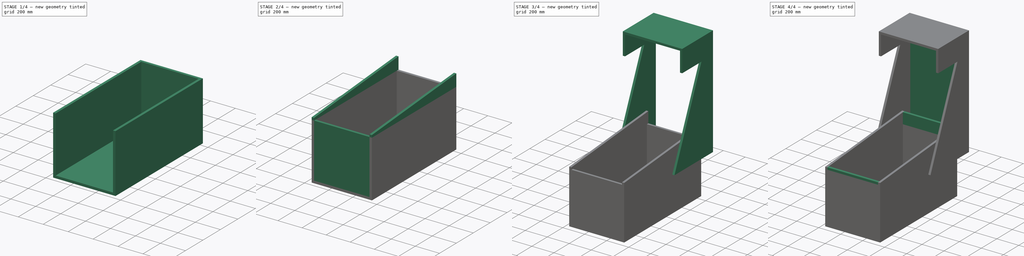
[diagram: build sequence overview — one tinted view per stage of 4, left to right]
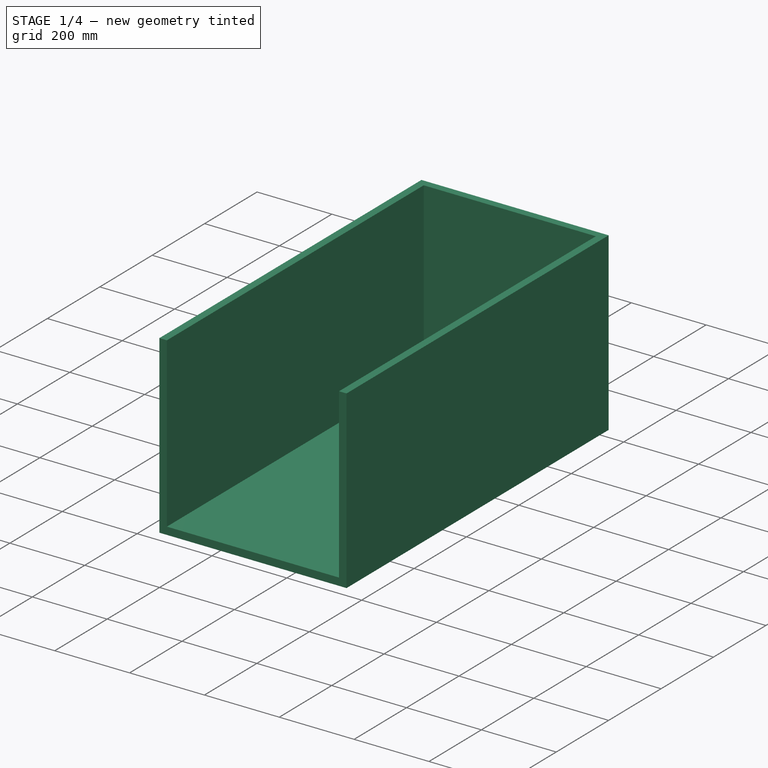
[diagram: stage 1 of 4 — iso view after this stage's code; geometry added in this stage tinted green]
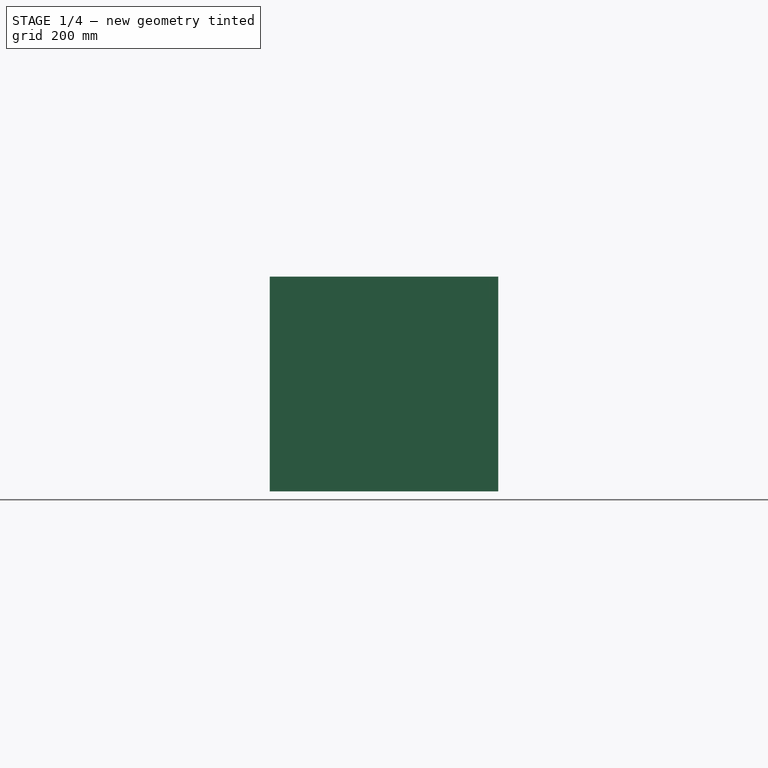
[diagram: stage 1 of 4 — front view after this stage's code; geometry added in this stage tinted green]
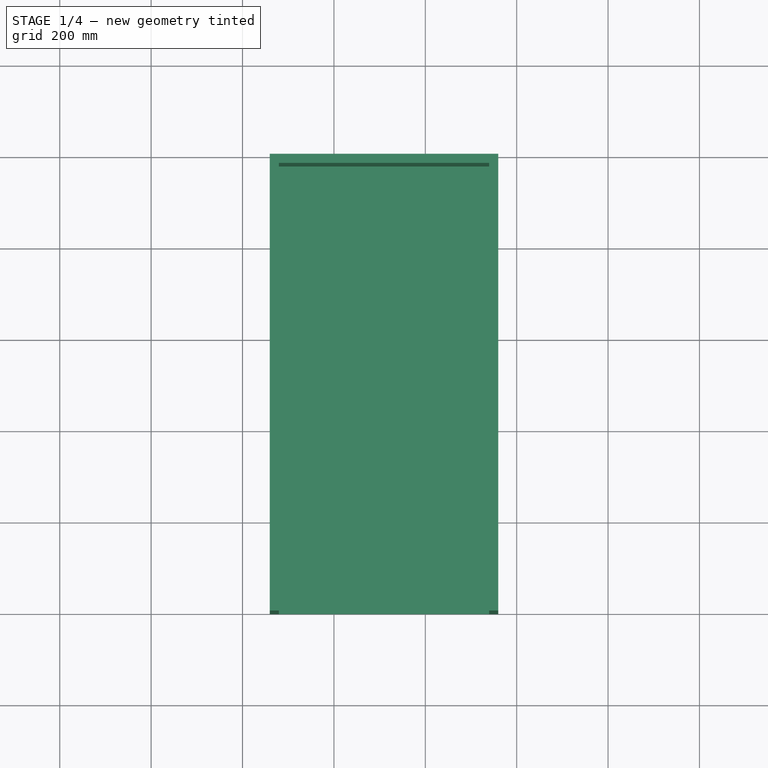
[diagram: stage 1 of 4 — top view after this stage's code; geometry added in this stage tinted green]
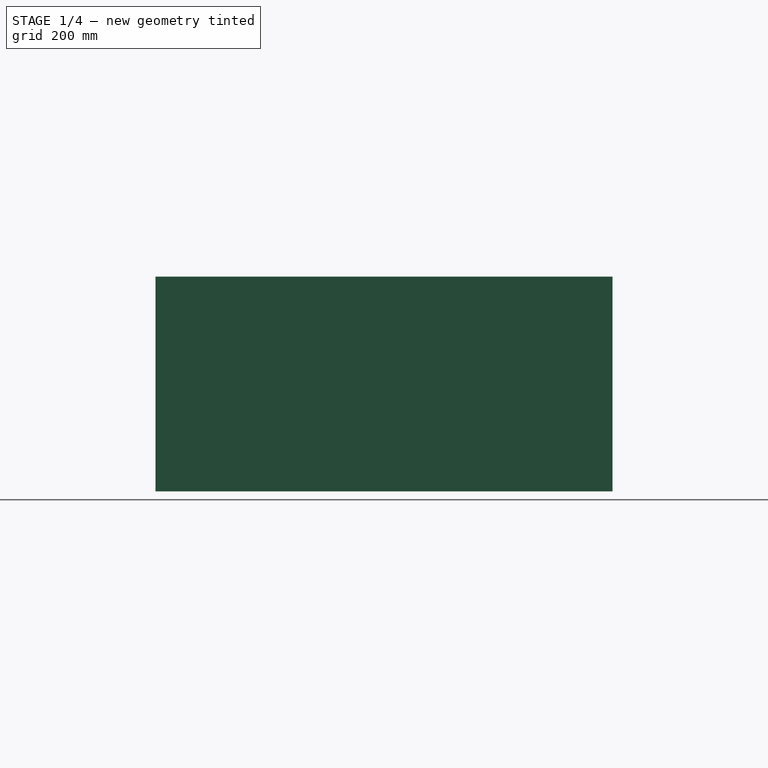
[diagram: stage 1 of 4 — right view after this stage's code; geometry added in this stage tinted green]
FCSTD DOCUMENT  (FreeCAD 0.18R16131 (Git))
Label: caisse_flipper
License: All rights reserved
LicenseURL: http://en.wikipedia.org/wiki/All_rights_reserved
objects: Sketcher::SketchObject×14, PartDesign::Pad×14, Spreadsheet::Sheet×1, PartDesign::Body×1, App::DocumentObjectGroup×1
note: 43 computed .brp shape members not serialized (recipe doc carries the construction recipe); baked Part::Feature solids carry a one-line shape summary decoded from their .brp

FEATURE [Spreadsheet::Sheet] Spreadsheet  label="dimensions_caisse"
  cells = A1=Longueur caisse (mm); B1=Largeur caisse (mm); C1=Epaisseur parois (mm=; D1=Hauteur côté (mm); E1=Largeur AV AR; F1=H1; G1=H2; A2(longueur_caisse)==1000mm; B2(largeur_caisse)==500mm; C2(epaisseur_caisse)==20mm; D2(hauteur_cote)==450mm; E2(largeur_av_ar)==B2 - 2 * C2; F2(h1)==100mm; G2(h2)==F2 * (1 - A10); A5=Dimensions Box; A6(box_b1)==500mm; B6(box_b2)==1000mm; C6(box_b3)==400mm; D6(box_b4)==200mm; E6(box_b5)==250mm; F6(box_profondeur)==box_b1 * (1 - B10); G6(box_pos_y)==150mm; H6(box_parois_ar)==box_b2 - epaisseur_caisse; A8=Constantes; A9=Pente plateau (0 à 1); B9=Profondeur box (0 à 1); A10=0.8; B10=0.75
FEATURE [Sketcher::SketchObject] Sketch  label="fond_caisse_esq"
  MapMode = 5
  Placement = pos=(0,0,0) rot=(1,0,0;1.5708rad)
  Support = -> [XZ_Plane]
  expr: Constraints[9] = dimensions_caisse.largeur_caisse
  expr: Constraints[8] = dimensions_caisse.epaisseur_caisse
  sketch-geometry (4):
    g0: LineSegment StartX=-140.375 StartY=2.95873 StartZ=0 EndX=359.625 EndY=2.95873 EndZ=0
    g1: LineSegment StartX=359.625 StartY=2.95873 StartZ=0 EndX=359.625 EndY=22.9587 EndZ=0
    g2: LineSegment StartX=359.625 StartY=22.9587 StartZ=0 EndX=-140.375 EndY=22.9587 EndZ=0
    g3: LineSegment StartX=-140.375 StartY=22.9587 StartZ=0 EndX=-140.375 EndY=2.95873 EndZ=0
  constraints (10):
    c: Coincident(g0,g1)
    c: Coincident(g1,g2)
    c: Coincident(g2,g3)
    c: Coincident(g3,g0)
    c: Horizontal(g0)
    c: Horizontal(g2)
    c: Vertical(g1)
    c: Vertical(g3)
    c: DistanceY(g1,g1) = 20
    c: DistanceX(g0,g0) = 500
FEATURE [PartDesign::Pad] Pad
  Length = 1000
  Length2 = 100
  Placement = pos=(0,0,0) rot=(1,0,0;1.5708rad)
  Profile = -> Sketch
  Type = 0
  expr: Length = dimensions_caisse.longueur_caisse
FEATURE [Sketcher::SketchObject] Sketch001  label="cote_gauche"
  ExternalGeometry = -> [Pad]
  MapMode = 5
  Placement = pos=(-140.375,0,0) rot=(0.707107,0,-0.707107;3.14159rad)
  Support = -> [Pad]
  expr: Constraints[9] = dimensions_caisse.longueur_caisse
  expr: Constraints[8] = dimensions_caisse.hauteur_cote
  sketch-geometry (4):
    g0: LineSegment StartX=-22.9587 StartY=0 StartZ=0 EndX=-472.959 EndY=0 EndZ=0
    g1: LineSegment StartX=-472.959 StartY=0 StartZ=0 EndX=-472.959 EndY=1000 EndZ=0
    g2: LineSegment StartX=-472.959 StartY=1000 StartZ=0 EndX=-22.9587 EndY=1000 EndZ=0
    g3: LineSegment StartX=-22.9587 StartY=1000 StartZ=0 EndX=-22.9587 EndY=0 EndZ=0
  constraints (11):
    c: Coincident(g0,g1)
    c: Coincident(g1,g2)
    c: Coincident(g2,g3)
    c: Coincident(g3,g0)
    c: Horizontal(g0)
    c: Horizontal(g2)
    c: Vertical(g1)
    c: Vertical(g3)
    c: DistanceX(g0,g0) = 450
    c: DistanceY(g1,g1) = 1000
    c: Coincident(g-3,g0)
FEATURE [PartDesign::Pad] Pad001
  BaseFeature = -> Pad
  Length = 20
  Length2 = 100
  Placement = pos=(0,0,0) rot=(1,0,0;1.5708rad)
  Profile = -> Sketch001
  Reversed = true
  Type = 0
  expr: Length = dimensions_caisse.epaisseur_caisse
FEATURE [Sketcher::SketchObject] Sketch002  label="cote_droit"
  ExternalGeometry = -> [Pad001]
  MapMode = 5
  Placement = pos=(359.625,0,0) rot=(0.707107,0,0.707107;3.14159rad)
  Support = -> [Pad001]
  expr: Constraints[9] = dimensions_caisse.hauteur_cote
  expr: Constraints[8] = dimensions_caisse.longueur_caisse
  sketch-geometry (4):
    g0: LineSegment StartX=22.9587 StartY=0 StartZ=0 EndX=472.959 EndY=0 EndZ=0
    g1: LineSegment StartX=472.959 StartY=0 StartZ=0 EndX=472.959 EndY=1000 EndZ=0
    g2: LineSegment StartX=472.959 StartY=1000 StartZ=0 EndX=22.9587 EndY=1000 EndZ=0
    g3: LineSegment StartX=22.9587 StartY=1000 StartZ=0 EndX=22.9587 EndY=0 EndZ=0
  constraints (11):
    c: Coincident(g0,g1)
    c: Coincident(g1,g2)
    c: Coincident(g2,g3)
    c: Coincident(g3,g0)
    c: Horizontal(g0)
    c: Horizontal(g2)
    c: Vertical(g1)
    c: Vertical(g3)
    c: DistanceY(g3,g3) = 1000
    c: DistanceX(g2,g2) = 450
    c: Coincident(g-3,g2)
FEATURE [PartDesign::Pad] Pad002
  BaseFeature = -> Pad001
  Length = 20
  Length2 = 100
  Placement = pos=(0,0,0) rot=(1,0,0;1.5708rad)
  Profile = -> Sketch002
  Reversed = true
  Type = 0
  expr: Length = dimensions_caisse.epaisseur_caisse
FEATURE [Sketcher::SketchObject] Sketch003  label="parois_ar"
  ExternalGeometry = -> [Pad002]
  MapMode = 5
  Placement = pos=(0,0,0) rot=(-1,0,0;1.5708rad)
  Support = -> [Pad002]
  expr: Constraints[9] = dimensions_caisse.largeur_av_ar
  expr: Constraints[8] = dimensions_caisse.hauteur_cote
  sketch-geometry (4):
    g0: LineSegment StartX=-120.375 StartY=-22.9587 StartZ=0 EndX=339.625 EndY=-22.9587 EndZ=0
    g1: LineSegment StartX=339.625 StartY=-22.9587 StartZ=0 EndX=339.625 EndY=-472.959 EndZ=0
    g2: LineSegment StartX=339.625 StartY=-472.959 StartZ=0 EndX=-120.375 EndY=-472.959 EndZ=0
    g3: LineSegment StartX=-120.375 StartY=-472.959 StartZ=0 EndX=-120.375 EndY=-22.9587 EndZ=0
  constraints (11):
    c: Coincident(g0,g1)
    c: Coincident(g1,g2)
    c: Coincident(g2,g3)
    c: Coincident(g3,g0)
    c: Horizontal(g0)
    c: Horizontal(g2)
    c: Vertical(g1)
    c: Vertical(g3)
    c: DistanceY(g3,g3) = 450
    c: DistanceX(g0,g0) = 460
    c: Coincident(g0,g-3)
FEATURE [PartDesign::Pad] Pad003
  BaseFeature = -> Pad002
  Length = 20
  Length2 = 100
  Placement = pos=(0,0,0) rot=(1,0,0;1.5708rad)
  Profile = -> Sketch003
  Reversed = true
  Type = 0
  expr: Length = dimensions_caisse.epaisseur_caisse
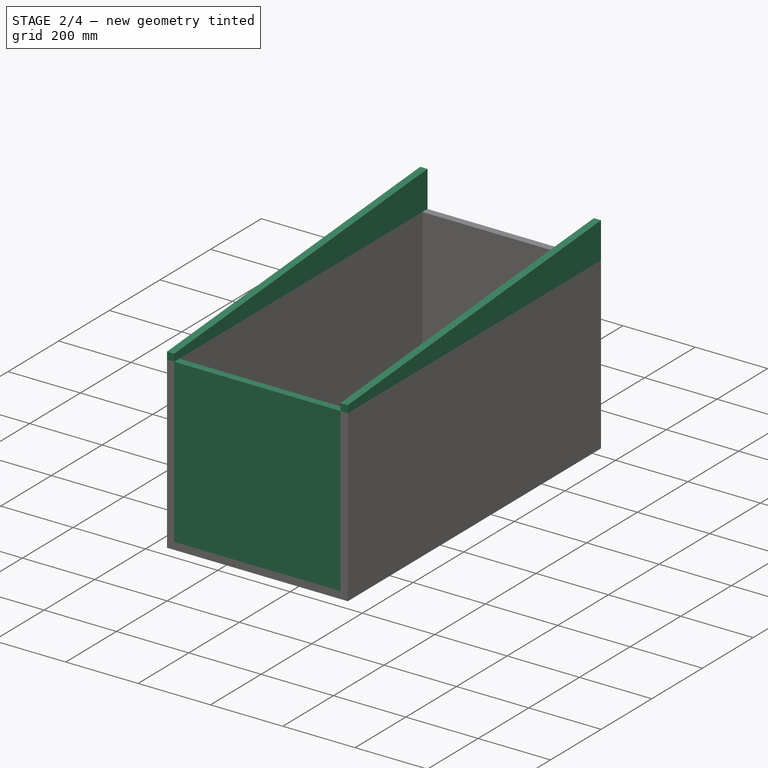
[diagram: stage 2 of 4 — iso view after this stage's code; geometry added in this stage tinted green]
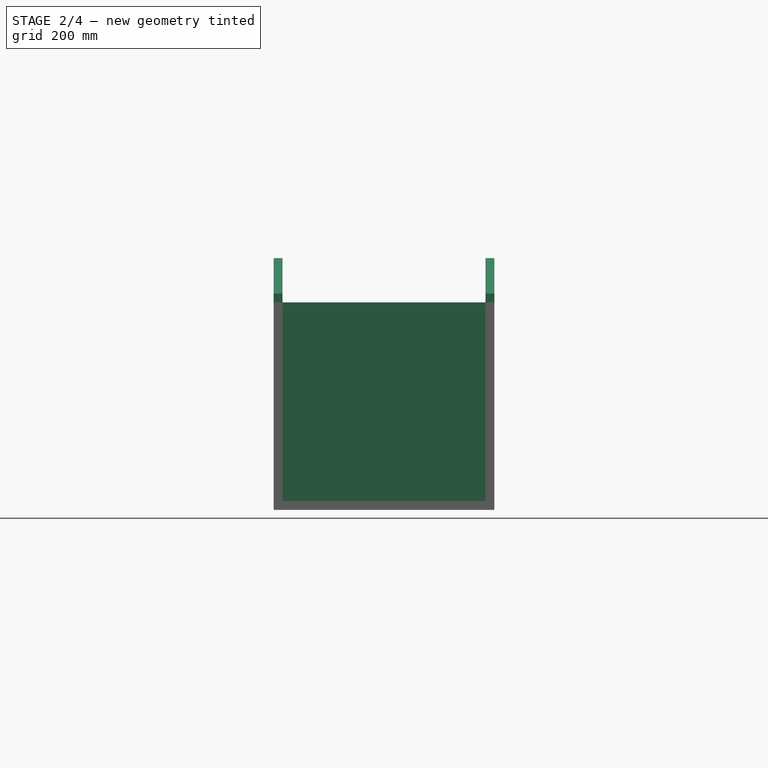
[diagram: stage 2 of 4 — front view after this stage's code; geometry added in this stage tinted green]
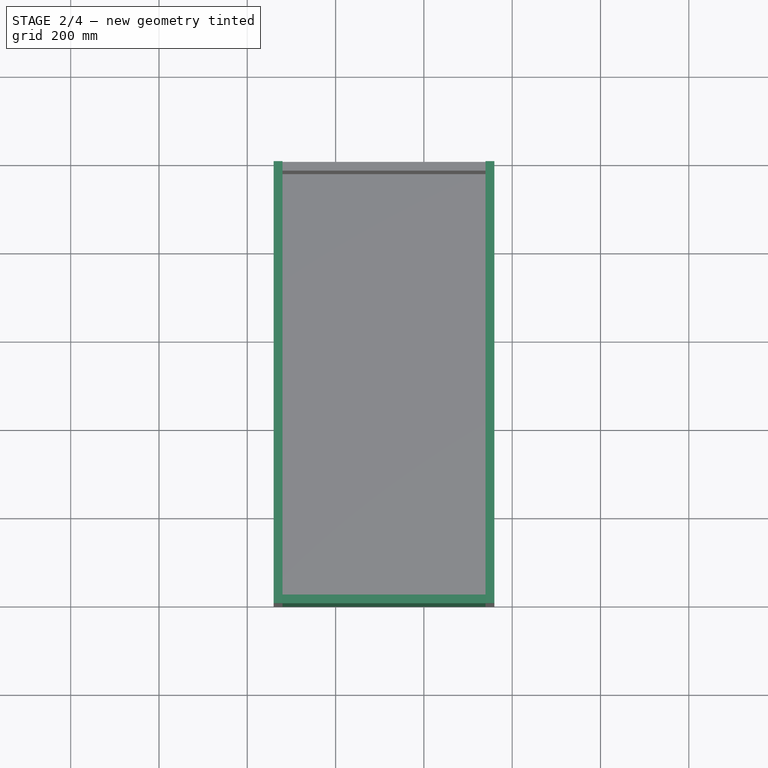
[diagram: stage 2 of 4 — top view after this stage's code; geometry added in this stage tinted green]
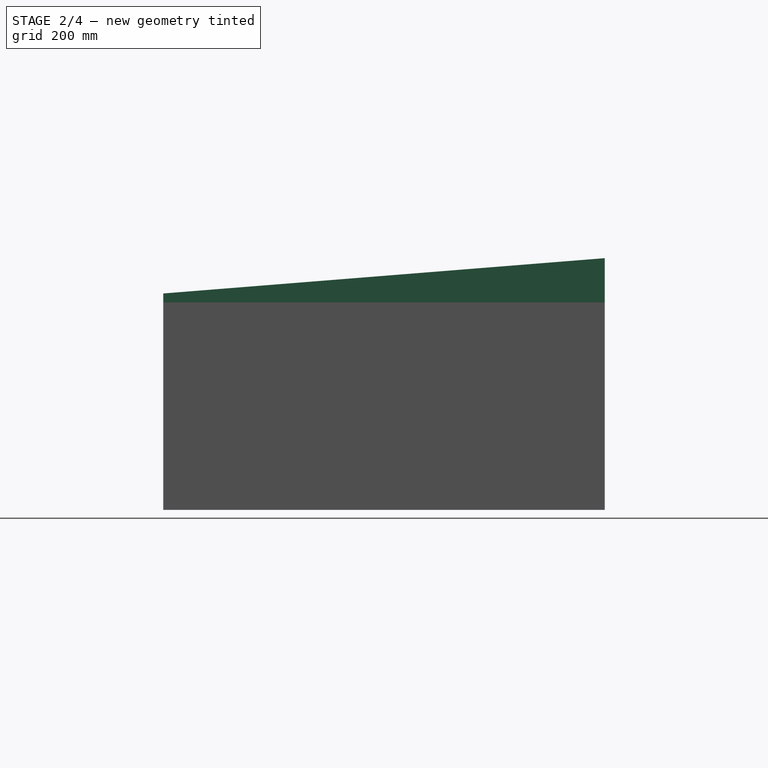
[diagram: stage 2 of 4 — right view after this stage's code; geometry added in this stage tinted green]
FEATURE [Sketcher::SketchObject] Sketch004
  ExternalGeometry = -> [Pad003]
  MapMode = 5
  Placement = pos=(0,-1000,2e-15) rot=(1,0,0;1.5708rad)
  Support = -> [Pad003]
  expr: Constraints[9] = dimensions_caisse.largeur_av_ar
  expr: Constraints[8] = dimensions_caisse.hauteur_cote
  sketch-geometry (4):
    g0: LineSegment StartX=-120.375 StartY=22.9587 StartZ=0 EndX=339.625 EndY=22.9587 EndZ=0
    g1: LineSegment StartX=339.625 StartY=22.9587 StartZ=0 EndX=339.625 EndY=472.959 EndZ=0
    g2: LineSegment StartX=339.625 StartY=472.959 StartZ=0 EndX=-120.375 EndY=472.959 EndZ=0
    g3: LineSegment StartX=-120.375 StartY=472.959 StartZ=0 EndX=-120.375 EndY=22.9587 EndZ=0
  constraints (11):
    c: Coincident(g0,g1)
    c: Coincident(g1,g2)
    c: Coincident(g2,g3)
    c: Coincident(g3,g0)
    c: Horizontal(g0)
    c: Horizontal(g2)
    c: Vertical(g1)
    c: Vertical(g3)
    c: DistanceY(g1,g1) = 450
    c: DistanceX(g0,g0) = 460
    c: Coincident(g-3,g0)
FEATURE [PartDesign::Pad] Pad004
  BaseFeature = -> Pad003
  Length = 20
  Length2 = 100
  Placement = pos=(0,0,0) rot=(1,0,0;1.5708rad)
  Profile = -> Sketch004
  Reversed = true
  Type = 0
  expr: Length = dimensions_caisse.epaisseur_caisse
FEATURE [Sketcher::SketchObject] Sketch005  label="pente_plateau_gauche"
  ExternalGeometry = -> [Pad004]
  MapMode = 5
  Placement = pos=(-140.375,0,-3.51e-14) rot=(0.707107,0,-0.707107;3.14159rad)
  Support = -> [Pad004]
  expr: Constraints[9] = dimensions_caisse.longueur_caisse
  expr: Constraints[8] = dimensions_caisse.h2
  expr: Constraints[7] = dimensions_caisse.h1
  sketch-geometry (4):
    g0: LineSegment StartX=-472.959 StartY=0 StartZ=0 EndX=-472.959 EndY=1000 EndZ=0
    g1: LineSegment StartX=-472.959 StartY=1000 StartZ=0 EndX=-492.959 EndY=1000 EndZ=0
    g2: LineSegment StartX=-492.959 StartY=1000 StartZ=0 EndX=-572.959 EndY=0 EndZ=0
    g3: LineSegment StartX=-572.959 StartY=0 StartZ=0 EndX=-472.959 EndY=0 EndZ=0
  constraints (11):
    c: Coincident(g0,g1)
    c: Coincident(g1,g2)
    c: Coincident(g2,g3)
    c: Coincident(g3,g0)
    c: Parallel(g0,g-3)
    c: Parallel(g-4,g3)
    c: Parallel(g1,g3)
    c: DistanceX(g3,g3) = 100
    c: DistanceX(g1,g1) = 20
    c: DistanceY(g0,g0) = 1000
    c: Coincident(g-4,g0)
FEATURE [PartDesign::Pad] Pad005
  BaseFeature = -> Pad004
  Length = 20
  Length2 = 100
  Placement = pos=(0,0,0) rot=(1,0,0;1.5708rad)
  Profile = -> Sketch005
  Reversed = true
  Type = 0
  expr: Length = dimensions_caisse.epaisseur_caisse
FEATURE [Sketcher::SketchObject] Sketch006  label="pente_plateau_droite"
  ExternalGeometry = -> [Pad005]
  MapMode = 5
  Placement = pos=(359.625,0,-8.99e-14) rot=(0.707107,0,0.707107;3.14159rad)
  Support = -> [Pad005]
  expr: Constraints[9] = dimensions_caisse.longueur_caisse
  expr: Constraints[8] = dimensions_caisse.h2
  expr: Constraints[7] = dimensions_caisse.h1
  sketch-geometry (4):
    g0: LineSegment StartX=472.959 StartY=0 StartZ=0 EndX=472.959 EndY=1000 EndZ=0
    g1: LineSegment StartX=472.959 StartY=1000 StartZ=0 EndX=492.959 EndY=1000 EndZ=0
    g2: LineSegment StartX=492.959 StartY=1000 StartZ=0 EndX=572.959 EndY=0 EndZ=0
    g3: LineSegment StartX=572.959 StartY=0 StartZ=0 EndX=472.959 EndY=0 EndZ=0
  constraints (11):
    c: Coincident(g0,g1)
    c: Coincident(g1,g2)
    c: Coincident(g2,g3)
    c: Coincident(g3,g0)
    c: Parallel(g-3,g0)
    c: Parallel(g3,g-1)
    c: Parallel(g1,g3)
    c: DistanceX(g3,g3) = 100
    c: DistanceX(g1,g1) = 20
    c: DistanceY(g0,g0) = 1000
    c: Coincident(g0,g-3)
FEATURE [PartDesign::Pad] Pad006
  BaseFeature = -> Pad005
  Length = 20
  Length2 = 100
  Placement = pos=(0,0,0) rot=(1,0,0;1.5708rad)
  Profile = -> Sketch006
  Reversed = true
  Type = 0
  expr: Length = dimensions_caisse.epaisseur_caisse
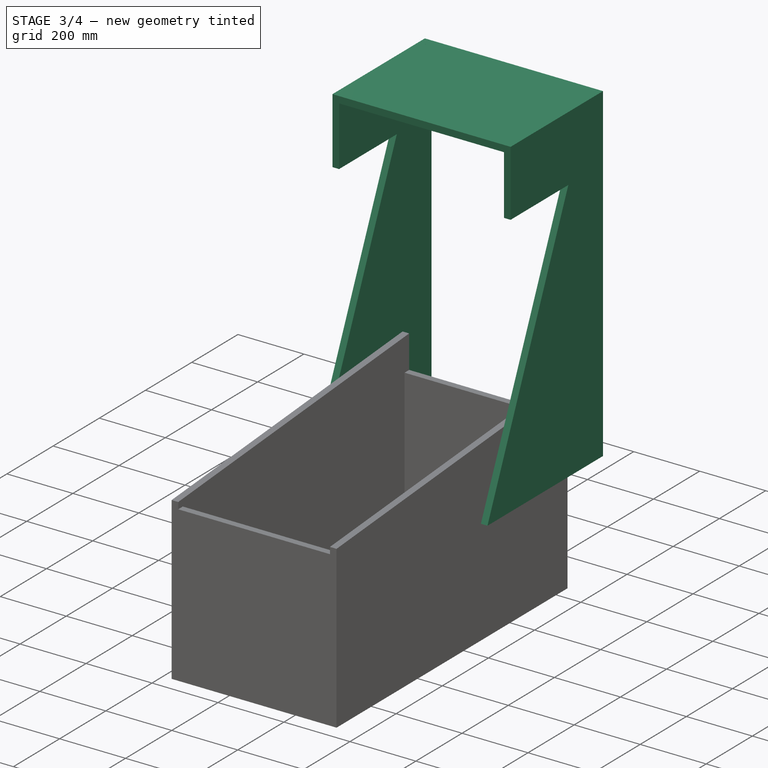
[diagram: stage 3 of 4 — iso view after this stage's code; geometry added in this stage tinted green]
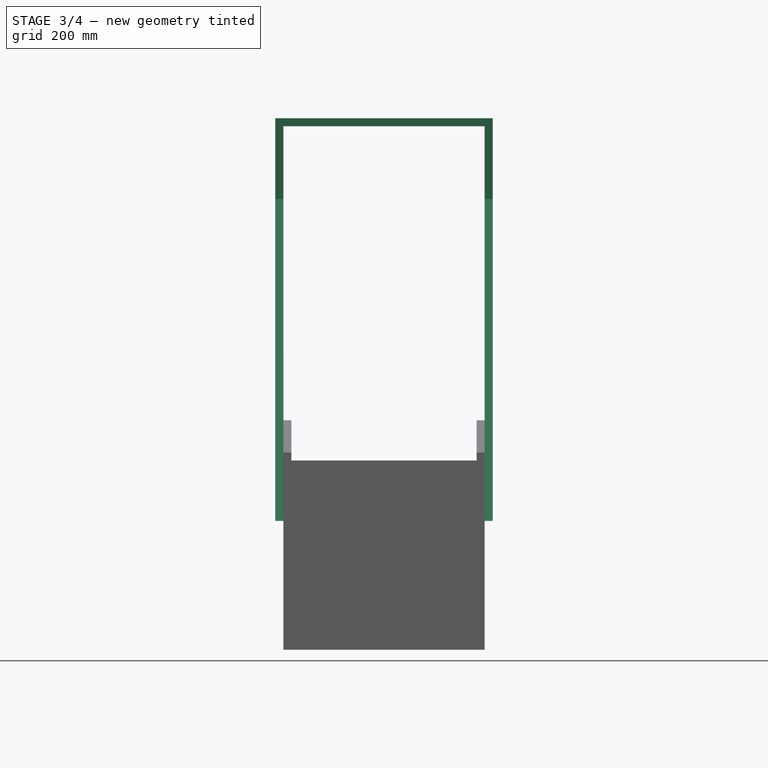
[diagram: stage 3 of 4 — front view after this stage's code; geometry added in this stage tinted green]
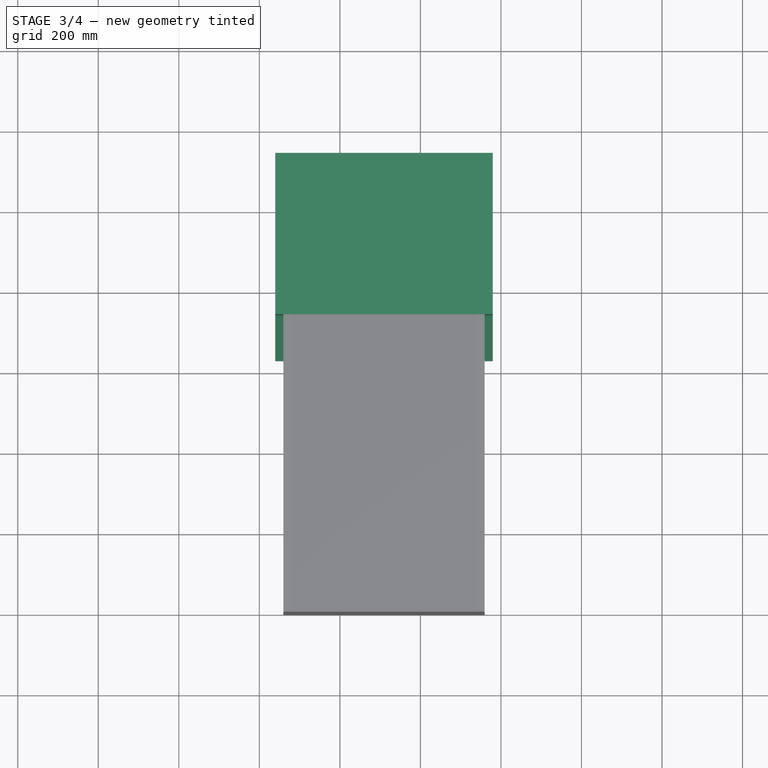
[diagram: stage 3 of 4 — top view after this stage's code; geometry added in this stage tinted green]
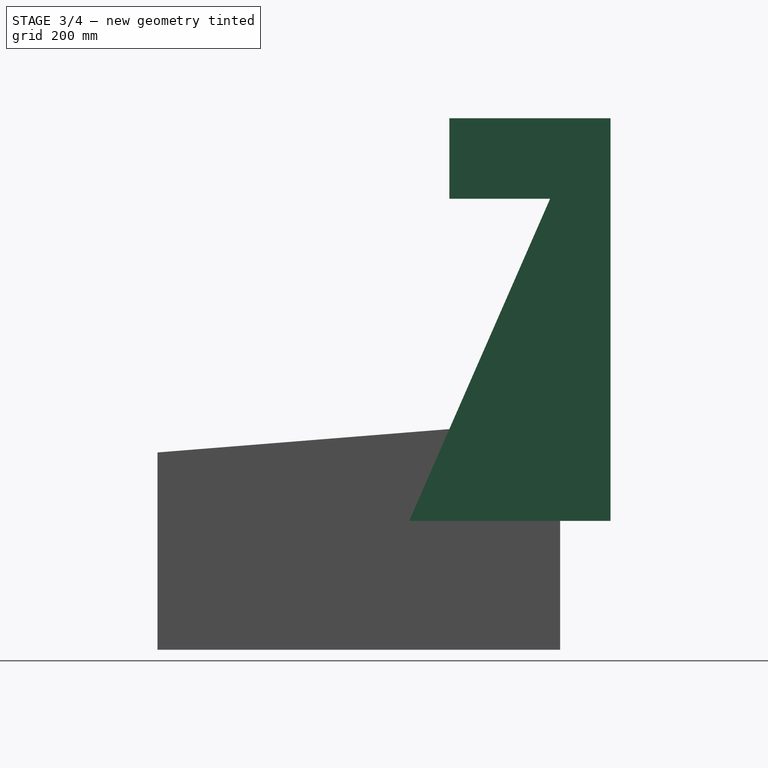
[diagram: stage 3 of 4 — right view after this stage's code; geometry added in this stage tinted green]
FEATURE [Sketcher::SketchObject] Sketch007  label="box_droite"
  ExternalGeometry = -> [Pad006]
  MapMode = 5
  Placement = pos=(359.625,0,-8.99e-14) rot=(0.707107,0,0.707107;3.14159rad)
  Support = -> [Pad006]
  expr: Constraints[19] = dimensions_caisse.box_pos_y
  expr: Constraints[18] = dimensions_caisse.box_profondeur
  expr: Constraints[15] = dimensions_caisse.box_b5
  expr: Constraints[14] = dimensions_caisse.box_b4
  expr: Constraints[13] = dimensions_caisse.box_b3
  expr: Constraints[12] = dimensions_caisse.box_b1
  expr: Constraints[11] = dimensions_caisse.box_b2
  sketch-geometry (7):
    g0: LineSegment StartX=322.959 StartY=375 StartZ=0 EndX=322.959 EndY=-125 EndZ=0
    g1: LineSegment StartX=322.959 StartY=-125 StartZ=0 EndX=1322.96 EndY=-125 EndZ=0
    g2: LineSegment StartX=1322.96 StartY=-125 StartZ=0 EndX=1322.96 EndY=275 EndZ=0
    g3: LineSegment StartX=1322.96 StartY=275 StartZ=0 EndX=1122.96 EndY=275 EndZ=0
    g4: LineSegment StartX=1122.96 StartY=275 StartZ=0 EndX=1122.96 EndY=25 EndZ=0
    g5: LineSegment StartX=1122.96 StartY=25 StartZ=0 EndX=322.959 EndY=375 EndZ=0
    g6: GeomPoint X=322.959 Y=0 Z=0
  constraints (20):
    c: Coincident(g0,g1)
    c: Coincident(g1,g2)
    c: Coincident(g2,g3)
    c: Coincident(g3,g4)
    c: Coincident(g4,g5)
    c: Coincident(g5,g0)
    c: Parallel(g0,g-3)
    c: Parallel(g-1,g1)
    c: Parallel(g2,g0)
    c: Parallel(g1,g3)
    c: Parallel(g4,g0)
    c: DistanceX(g1,g1) = 1000
    c: DistanceY(g0,g0) = 500
    c: DistanceY(g2,g2) = 400
    c: DistanceX(g3,g3) = 200
    c: DistanceY(g4,g4) = 250
    c: PointOnObject(g6,g0)
    c: PointOnObject(g6,g-1)
    c: DistanceY(g0,g6) = 125
    c: DistanceX(g6,g-3) = 150
FEATURE [PartDesign::Pad] Pad007
  BaseFeature = -> Pad006
  Length = 20
  Length2 = 100
  Placement = pos=(0,0,0) rot=(1,0,0;1.5708rad)
  Profile = -> Sketch007
  Type = 0
  expr: Length = dimensions_caisse.epaisseur_caisse
FEATURE [Sketcher::SketchObject] Sketch008  label="box_gauche"
  ExternalGeometry = -> [Pad007]
  MapMode = 5
  Placement = pos=(-140.375,0,-3.51e-14) rot=(0.707107,0,-0.707107;3.14159rad)
  Support = -> [Pad007]
  expr: Constraints[19] = dimensions_caisse.box_pos_y
  expr: Constraints[18] = dimensions_caisse.box_profondeur
  expr: Constraints[15] = dimensions_caisse.box_b5
  expr: Constraints[14] = dimensions_caisse.box_b4
  expr: Constraints[13] = dimensions_caisse.box_b1
  expr: Constraints[12] = dimensions_caisse.box_b3
  expr: Constraints[11] = dimensions_caisse.box_b2
  sketch-geometry (7):
    g0: LineSegment StartX=-322.959 StartY=-125 StartZ=0 EndX=-1322.96 EndY=-125 EndZ=0
    g1: LineSegment StartX=-1322.96 StartY=-125 StartZ=0 EndX=-1322.96 EndY=275 EndZ=0
    g2: LineSegment StartX=-1322.96 StartY=275 StartZ=0 EndX=-1122.96 EndY=275 EndZ=0
    g3: LineSegment StartX=-1122.96 StartY=275 StartZ=0 EndX=-1122.96 EndY=25 EndZ=0
    g4: LineSegment StartX=-1122.96 StartY=25 StartZ=0 EndX=-322.959 EndY=375 EndZ=0
    g5: LineSegment StartX=-322.959 StartY=375 StartZ=0 EndX=-322.959 EndY=-125 EndZ=0
    g6: GeomPoint X=-322.959 Y=0 Z=0
  constraints (20):
    c: Coincident(g0,g1)
    c: Coincident(g1,g2)
    c: Coincident(g2,g3)
    c: Coincident(g3,g4)
    c: Coincident(g4,g5)
    c: Coincident(g5,g0)
    c: Parallel(g5,g-3)
    c: Parallel(g3,g5)
    c: Parallel(g1,g3)
    c: Parallel(g0,g-1)
    c: Parallel(g2,g0)
    c: DistanceX(g0,g0) = 1000
    c: DistanceY(g1,g1) = 400
    c: DistanceY(g5,g5) = 500
    c: DistanceX(g2,g2) = 200
    c: DistanceY(g3,g3) = 250
    c: PointOnObject(g6,g5)
    c: PointOnObject(g6,g-1)
    c: DistanceY(g0,g6) = 125
    c: DistanceX(g-3,g6) = 150
FEATURE [PartDesign::Pad] Pad008
  BaseFeature = -> Pad007
  Length = 20
  Length2 = 100
  Placement = pos=(0,0,0) rot=(1,0,0;1.5708rad)
  Profile = -> Sketch008
  Type = 0
  expr: Length = dimensions_caisse.epaisseur_caisse
FEATURE [Sketcher::SketchObject] Sketch009  label="box_top"
  ExternalGeometry = -> [Pad008]
  MapMode = 5
  Placement = pos=(-2.911e-13,2.938e-13,1322.96) rot=(0,0,1;3.14159rad)
  Support = -> [Pad008]
  sketch-geometry (4):
    g0: LineSegment StartX=140.374 StartY=-125 StartZ=0 EndX=-359.626 EndY=-125 EndZ=0
    g1: LineSegment StartX=-359.626 StartY=-125 StartZ=0 EndX=-359.626 EndY=275 EndZ=0
    g2: LineSegment StartX=-359.626 StartY=275 StartZ=0 EndX=140.374 EndY=275 EndZ=0
    g3: LineSegment StartX=140.374 StartY=275 StartZ=0 EndX=140.374 EndY=-125 EndZ=0
  constraints (8):
    c: Coincident(g0,g1)
    c: Coincident(g1,g2)
    c: Coincident(g2,g3)
    c: Coincident(g3,g0)
    c: Horizontal(g0)
    c: Horizontal(g2)
    c: Vertical(g1)
    c: Vertical(g3)
FEATURE [PartDesign::Pad] Pad009
  BaseFeature = -> Pad008
  Length = 20
  Length2 = 100
  Placement = pos=(0,0,0) rot=(1,0,0;1.5708rad)
  Profile = -> Sketch009
  Reversed = true
  Type = 0
  expr: Length = dimensions_caisse.epaisseur_caisse
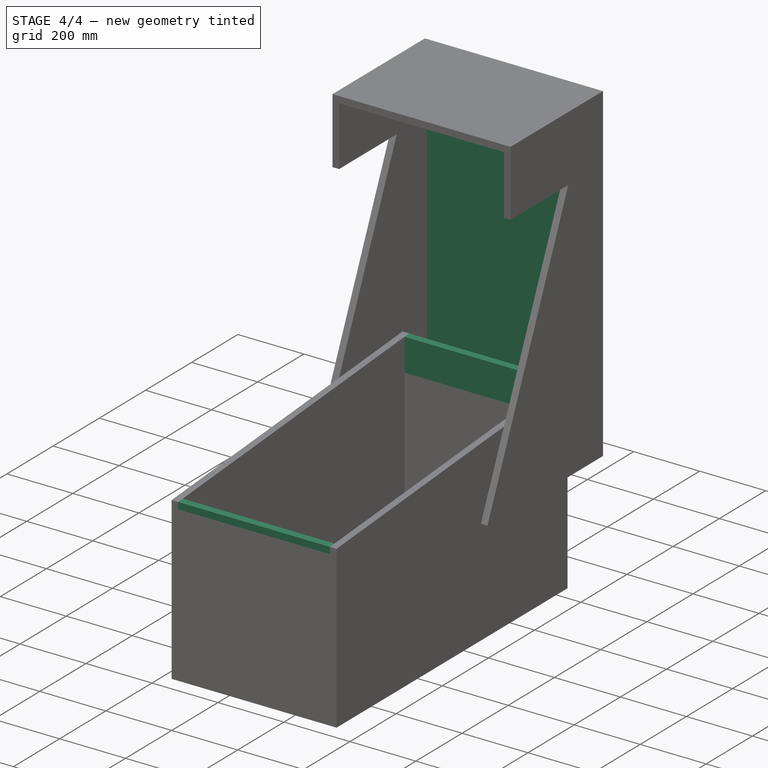
[diagram: stage 4 of 4 — iso view after this stage's code; geometry added in this stage tinted green]
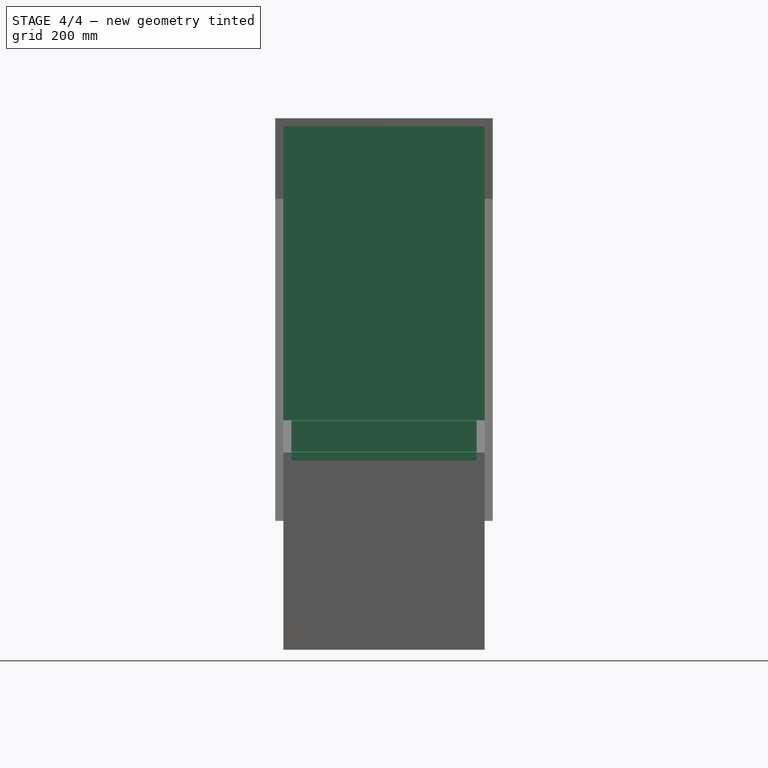
[diagram: stage 4 of 4 — front view after this stage's code; geometry added in this stage tinted green]
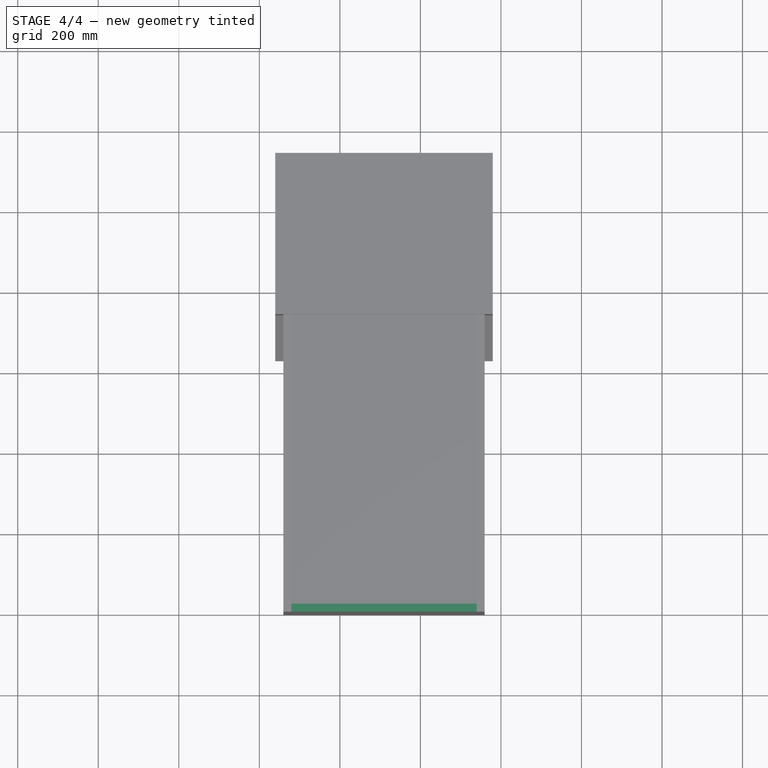
[diagram: stage 4 of 4 — top view after this stage's code; geometry added in this stage tinted green]
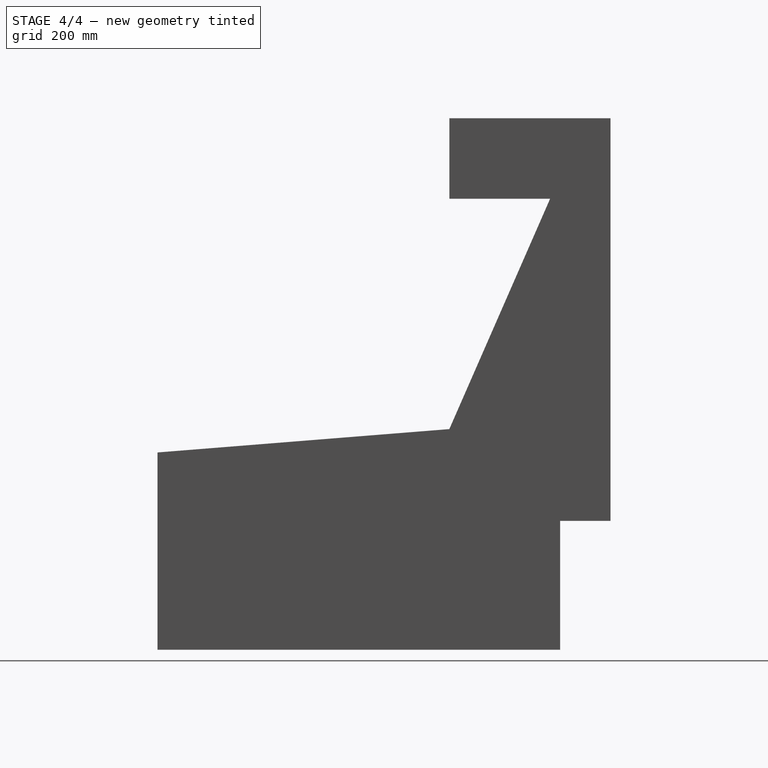
[diagram: stage 4 of 4 — right view after this stage's code; geometry added in this stage tinted green]
FEATURE [Sketcher::SketchObject] Sketch010  label="box_parois_ar"
  ExternalGeometry = -> [Pad009]
  MapMode = 5
  Placement = pos=(0,2.893e-13,1302.96) rot=(1,0,0;3.14159rad)
  Support = -> [Pad009]
  expr: Constraints[10] = dimensions_caisse.epaisseur_caisse
  sketch-geometry (5):
    g0: GeomPoint X=359.625 Y=-105 Z=0
    g1: LineSegment StartX=-140.374 StartY=-125 StartZ=0 EndX=359.625 EndY=-125 EndZ=0
    g2: LineSegment StartX=359.625 StartY=-125 StartZ=0 EndX=359.625 EndY=-105 EndZ=0
    g3: LineSegment StartX=359.625 StartY=-105 StartZ=0 EndX=-140.374 EndY=-105 EndZ=0
    g4: LineSegment StartX=-140.374 StartY=-105 StartZ=0 EndX=-140.374 EndY=-125 EndZ=0
  constraints (12):
    c: PointOnObject(g0,g-4)
    c: Coincident(g1,g2)
    c: Coincident(g2,g3)
    c: Coincident(g3,g4)
    c: Coincident(g4,g1)
    c: Horizontal(g1)
    c: Horizontal(g3)
    c: Vertical(g2)
    c: Vertical(g4)
    c: Coincident(g2,g0)
    c: DistanceY(g2,g2) = 20
    c: Coincident(g1,g-5)
FEATURE [PartDesign::Pad] Pad010
  BaseFeature = -> Pad009
  Length = 980
  Length2 = 100
  Placement = pos=(0,0,0) rot=(1,0,0;1.5708rad)
  Profile = -> Sketch010
  Type = 0
  expr: Length = dimensions_caisse.box_parois_ar
FEATURE [Sketcher::SketchObject] Sketch011  label="box_fond"
  ExternalGeometry = -> [Pad010]
  MapMode = 5
  Placement = pos=(0,7.17e-14,322.959) rot=(1,0,0;3.14159rad)
  Support = -> [Pad010]
  sketch-geometry (4):
    g0: LineSegment StartX=-140.374 StartY=-105 StartZ=0 EndX=359.625 EndY=-105 EndZ=0
    g1: LineSegment StartX=359.625 StartY=-105 StartZ=0 EndX=359.625 EndY=7.11e-14 EndZ=0
    g2: LineSegment StartX=359.625 StartY=7.11e-14 StartZ=0 EndX=-140.374 EndY=7.11e-14 EndZ=0
    g3: LineSegment StartX=-140.374 StartY=7.11e-14 StartZ=0 EndX=-140.374 EndY=-105 EndZ=0
  constraints (10):
    c: Coincident(g0,g1)
    c: Coincident(g1,g2)
    c: Coincident(g2,g3)
    c: Coincident(g3,g0)
    c: Horizontal(g0)
    c: Horizontal(g2)
    c: Vertical(g1)
    c: Vertical(g3)
    c: Coincident(g-3,g0)
    c: Coincident(g1,g-4)
FEATURE [PartDesign::Pad] Pad011
  BaseFeature = -> Pad010
  Length = 20
  Length2 = 100
  Placement = pos=(0,0,0) rot=(1,0,0;1.5708rad)
  Profile = -> Sketch011
  Reversed = true
  Type = 0
  expr: Length = dimensions_caisse.epaisseur_caisse
FEATURE [Sketcher::SketchObject] Sketch012  label="support_avant"
  ExternalGeometry = -> [Pad011]
  MapMode = 5
  Placement = pos=(-120.375,0,0) rot=(0.707107,0,0.707107;3.14159rad)
  Support = -> [Pad011]
  expr: Constraints[8] = dimensions_caisse.epaisseur_caisse
  sketch-geometry (4):
    g0: LineSegment StartX=492.959 StartY=1000 StartZ=0 EndX=494.559 EndY=980 EndZ=0
    g1: LineSegment StartX=494.559 StartY=980 StartZ=0 EndX=472.959 EndY=980 EndZ=0
    g2: LineSegment StartX=472.959 StartY=980 StartZ=0 EndX=472.959 EndY=1000 EndZ=0
    g3: LineSegment StartX=472.959 StartY=1000 StartZ=0 EndX=492.959 EndY=1000 EndZ=0
  constraints (9):
    c: Coincident(g0,g1)
    c: Coincident(g1,g2)
    c: Coincident(g2,g3)
    c: Coincident(g3,g0)
    c: Coincident(g2,g-3)
    c: Coincident(g1,g-4)
    c: Coincident(g0,g-6)
    c: PointOnObject(g0,g-6)
    c: DistanceY(g0,g0) = 20
FEATURE [PartDesign::Pad] Pad012
  BaseFeature = -> Pad011
  Length = 460
  Length2 = 100
  Placement = pos=(0,0,0) rot=(1,0,0;1.5708rad)
  Profile = -> Sketch012
  Type = 0
  expr: Length = dimensions_caisse.largeur_av_ar
FEATURE [Sketcher::SketchObject] Sketch013  label="support_ar_plateau"
  ExternalGeometry = -> [Pad012]
  MapMode = 5
  Placement = pos=(-120.375,0,0) rot=(0.707107,0,0.707107;3.14159rad)
  Support = -> [Pad012]
  expr: Constraints[8] = dimensions_caisse.epaisseur_caisse
  sketch-geometry (4):
    g0: LineSegment StartX=472.959 StartY=20 StartZ=0 EndX=472.959 EndY=0 EndZ=0
    g1: LineSegment StartX=472.959 StartY=0 StartZ=0 EndX=572.959 EndY=0 EndZ=0
    g2: LineSegment StartX=572.959 StartY=0 StartZ=0 EndX=571.359 EndY=20 EndZ=0
    g3: LineSegment StartX=571.359 StartY=20 StartZ=0 EndX=472.959 EndY=20 EndZ=0
  constraints (9):
    c: Coincident(g0,g1)
    c: Coincident(g1,g2)
    c: Coincident(g2,g3)
    c: Coincident(g3,g0)
    c: Coincident(g0,g-3)
    c: PointOnObject(g2,g-4)
    c: Coincident(g1,g-4)
    c: Coincident(g0,g-5)
    c: DistanceY(g2,g2) = 20
FEATURE [PartDesign::Pad] Pad013
  BaseFeature = -> Pad012
  Length = 460
  Length2 = 100
  Placement = pos=(0,0,0) rot=(1,0,0;1.5708rad)
  Profile = -> Sketch013
  Type = 0
  expr: Length = dimensions_caisse.largeur_av_ar
FEATURE [PartDesign::Body] Body  label="caisse_flipper"
  Group = -> [Sketch,Pad,Sketch001,Pad001,Sketch002,Pad002,Sketch003,Pad003,Sketch004,Pad004,Sketch005,Pad005,Sketch006,Pad006,Sketch007,Pad007,Sketch008,Pad008,Sketch009,Pad009,Sketch010,Pad010,Sketch011,Pad011,Sketch012,Pad012,Sketch013,Pad013]
  Origin = -> Origin
FEATURE [App::DocumentObjectGroup] Group  label="Caisse_flipper_V1"
  Group = -> [Body]
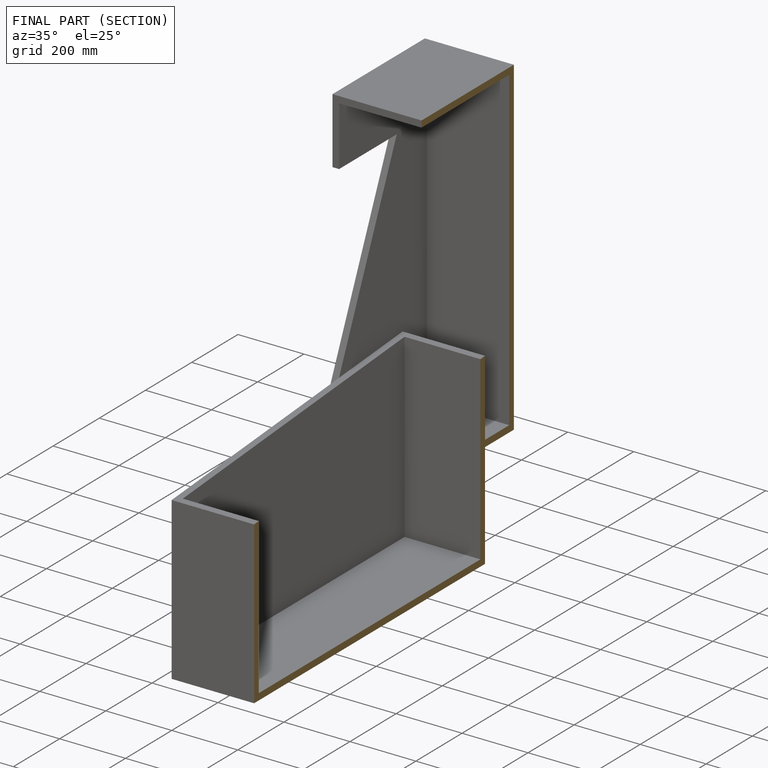
[diagram: finished part — half-section view (interior)]
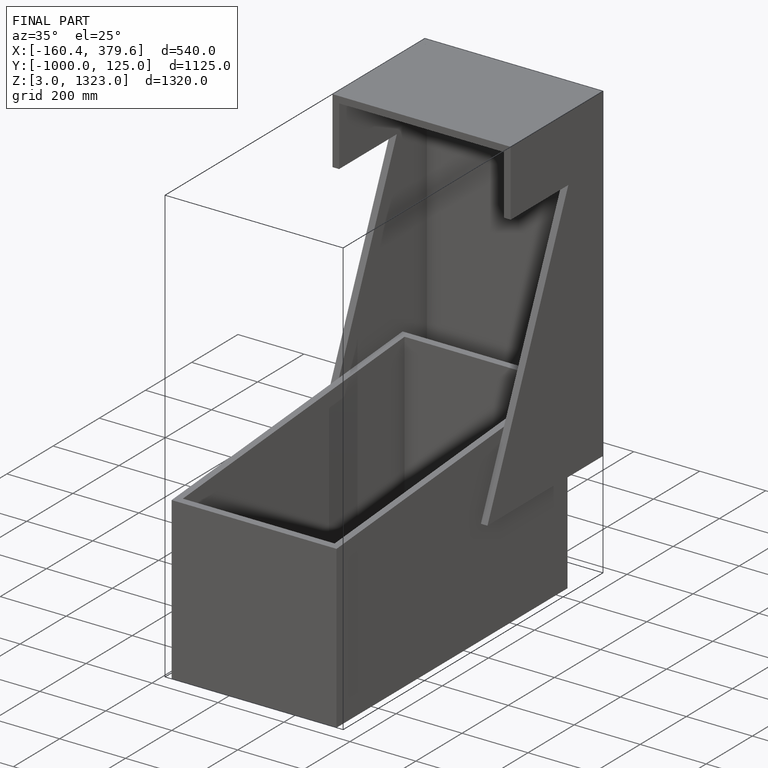
[diagram: finished part — iso view with bounding-box wireframe]
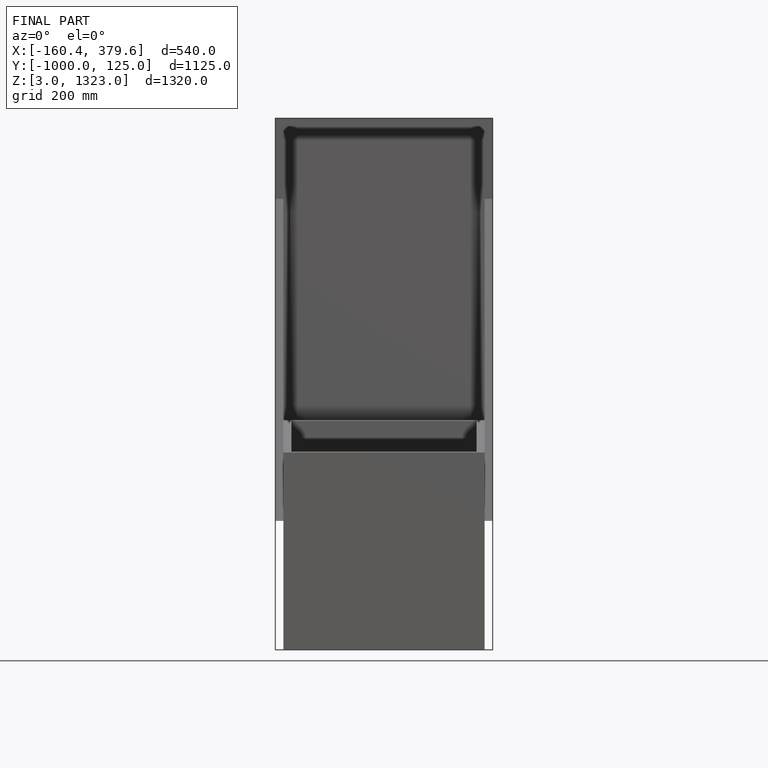
[diagram: finished part — front view with bounding-box wireframe]
